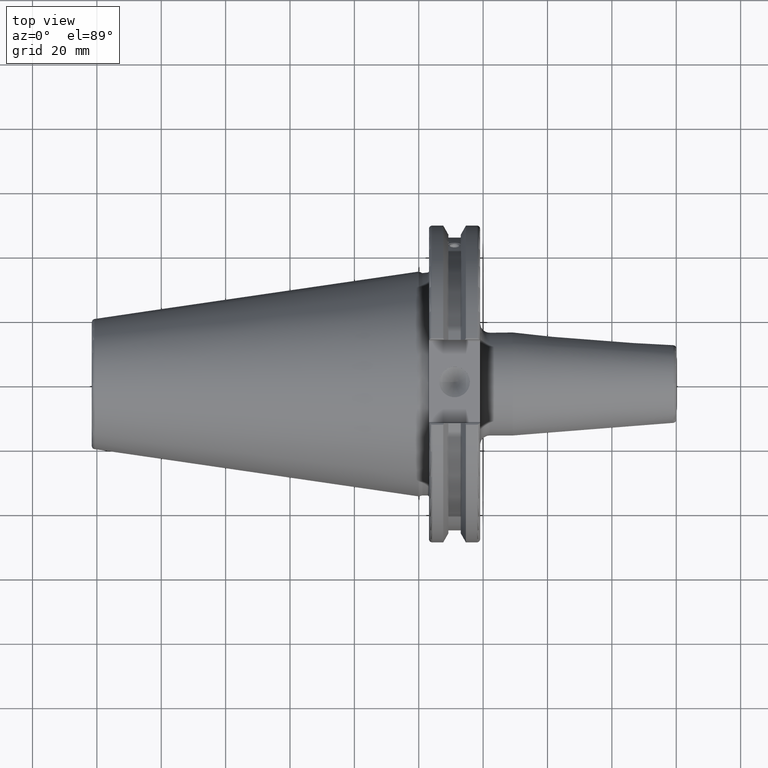
[diagram: clean part render]
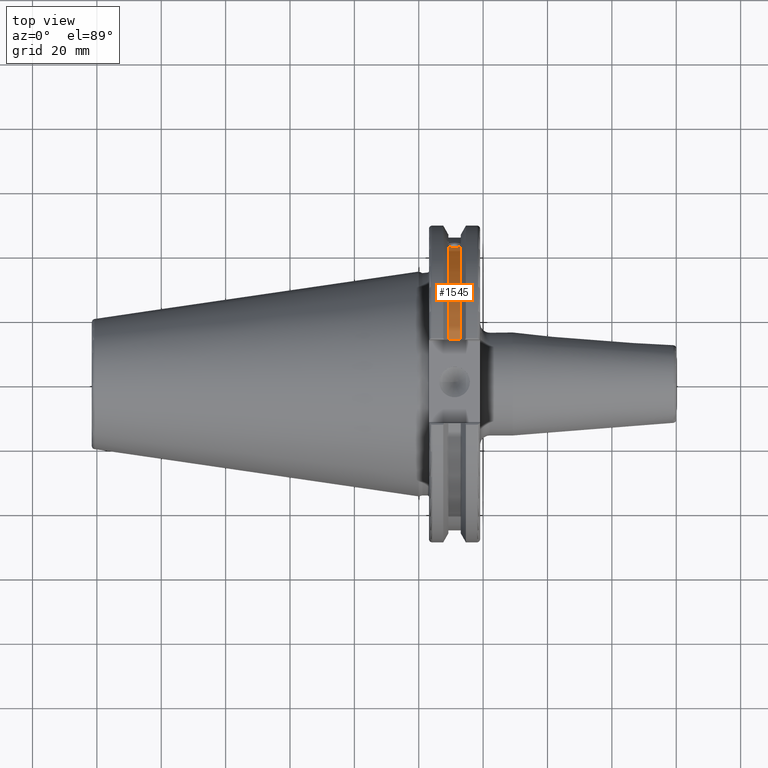
[diagram: same view with one face highlighted and labeled with its STEP entity id]
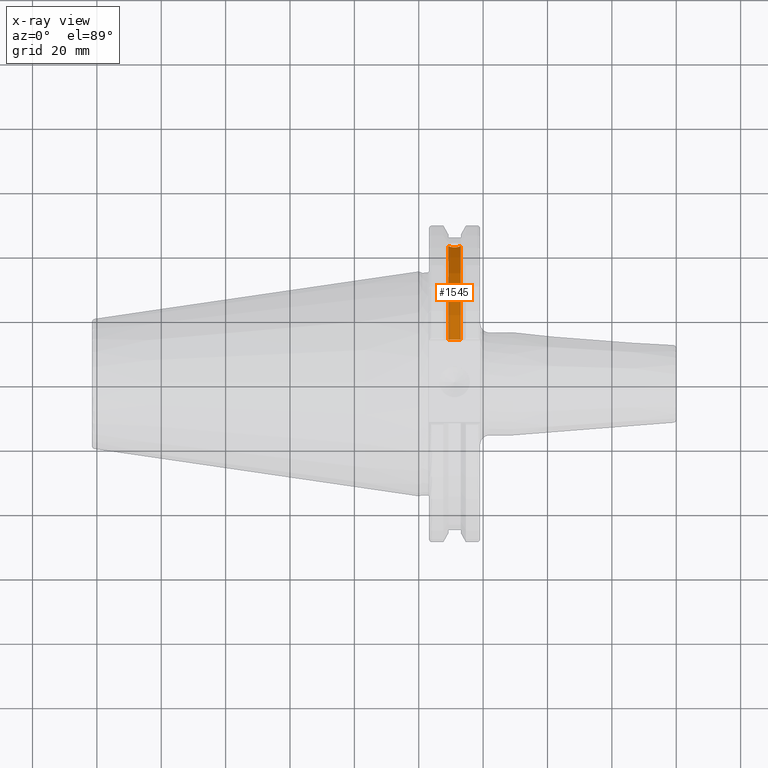
[diagram: x-ray of the same camera — body ghosted, the highlighted face saturated]
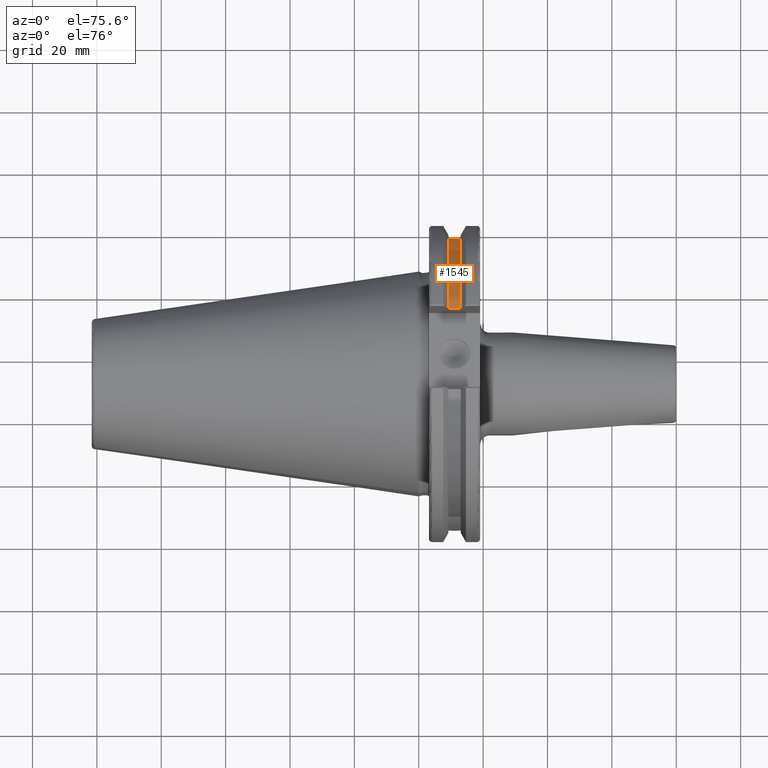
[diagram: same view with one face highlighted and labeled with its STEP entity id]
A machine part, top view. The second image highlights one B-rep face of the part: STEP entity #1545.
The next image is the same camera in x-ray: the body ghosted, the highlighted face saturated — about 0% of this face is hidden behind the body in this view.
A second angle (auxiliary view) of the same face is appended — the face is thin or edge-on in the first view.
In plain terms, the highlighted cylindrical surface (partial cylindrical patch) has radius 45.6435 mm, axis along (1, 0, 0).
Its self-contained STEP definition (entity closure, byte-faithful):
#51=B_SPLINE_CURVE_WITH_KNOTS('',3,(#2789,#2790,#2791,#2792,#2793,#2794,
#2795,#2796,#2797,#2798,#2799,#2800,#2801,#2802,#2803),.UNSPECIFIED.,.F.,
 .F.,(4,2,2,3,2,2,4),(-0.231381164054415,-0.158232381135623,-0.0791161905678115,
0.,0.0791161905678115,0.158232381135623,0.231381164054564),
 .UNSPECIFIED.);
#157=CYLINDRICAL_SURFACE('',#1703,45.6435);
#206=FACE_OUTER_BOUND('',#309,.T.);
#309=EDGE_LOOP('',(#1218,#1219,#1220,#1221));
#414=LINE('',#2844,#510);
#510=VECTOR('',#2004,10.);
#605=CIRCLE('',#1702,45.6435);
#606=CIRCLE('',#1704,45.6435);
#723=VERTEX_POINT('',#2786);
#724=VERTEX_POINT('',#2788);
#732=VERTEX_POINT('',#2838);
#733=VERTEX_POINT('',#2842);
#903=EDGE_CURVE('',#724,#723,#51,.T.);
#913=EDGE_CURVE('',#724,#732,#605,.T.);
#915=EDGE_CURVE('',#723,#733,#606,.T.);
#916=EDGE_CURVE('',#733,#732,#414,.T.);
#1218=ORIENTED_EDGE('',*,*,#903,.T.);
#1219=ORIENTED_EDGE('',*,*,#915,.T.);
#1220=ORIENTED_EDGE('',*,*,#916,.T.);
#1221=ORIENTED_EDGE('',*,*,#913,.F.);
#1545=ADVANCED_FACE('',(#206),#157,.T.);
#1702=AXIS2_PLACEMENT_3D('',#2839,#1997,#1998);
#1703=AXIS2_PLACEMENT_3D('',#2841,#2000,#2001);
#1704=AXIS2_PLACEMENT_3D('',#2843,#2002,#2003);
#1997=DIRECTION('center_axis',(1.,0.,0.));
#1998=DIRECTION('ref_axis',(0.,0.,-1.));
#2000=DIRECTION('center_axis',(1.,0.,0.));
#2001=DIRECTION('ref_axis',(0.,1.,0.));
#2002=DIRECTION('center_axis',(1.,0.,0.));
#2003=DIRECTION('ref_axis',(0.,0.,-1.));
#2004=DIRECTION('',(1.,0.,0.));
#2786=CARTESIAN_POINT('',(9.21200000000001,42.5884454651059,16.4180816515115));
#2788=CARTESIAN_POINT('',(13.042,42.5884454651059,16.4180816515116));
#2789=CARTESIAN_POINT('Ctrl Pts',(13.042,42.5884454651059,16.4180816515116));
#2790=CARTESIAN_POINT('Ctrl Pts',(12.9357782240206,42.5035323832641,16.6383458840849));
#2791=CARTESIAN_POINT('Ctrl Pts',(12.784291924423,42.4245077186417,16.8380515255915));
#2792=CARTESIAN_POINT('Ctrl Pts',(12.4254949659982,42.2908173017388,17.1712159412199));
#2793=CARTESIAN_POINT('Ctrl Pts',(12.1893796719457,42.2294695309474,17.3208689126276));
#2794=CARTESIAN_POINT('Ctrl Pts',(11.6719940832128,42.1475978938586,17.5191491957165));
#2795=CARTESIAN_POINT('Ctrl Pts',(11.390720635226,42.1271980081205,17.5678194501937));
#2796=CARTESIAN_POINT('Ctrl Pts',(11.127,42.1271980081205,17.5678194501937));
#2797=CARTESIAN_POINT('Ctrl Pts',(10.863279364774,42.1271980081205,17.5678194501937));
#2798=CARTESIAN_POINT('Ctrl Pts',(10.5820059167872,42.1475978938586,17.5191491957165));
#2799=CARTESIAN_POINT('Ctrl Pts',(10.0646203280543,42.2294695309474,17.3208689126276));
#2800=CARTESIAN_POINT('Ctrl Pts',(9.8285050340018,42.2908173017388,17.1712159412199));
#2801=CARTESIAN_POINT('Ctrl Pts',(9.46970807557666,42.4245077186418,16.8380515255912));
#2802=CARTESIAN_POINT('Ctrl Pts',(9.31822177598177,42.5035323832622,16.6383458840897));
#2803=CARTESIAN_POINT('Ctrl Pts',(9.212,42.5884454651059,16.4180816515115));
#2838=CARTESIAN_POINT('',(13.042,12.95,43.7678716897452));
#2839=CARTESIAN_POINT('Origin',(13.042,0.,0.));
#2841=CARTESIAN_POINT('Origin',(11.127,0.,0.));
#2842=CARTESIAN_POINT('',(9.21200000000001,12.95,43.7678716897452));
#2843=CARTESIAN_POINT('Origin',(9.21200000000001,0.,0.));
#2844=CARTESIAN_POINT('',(11.127,12.95,43.7678716897452));